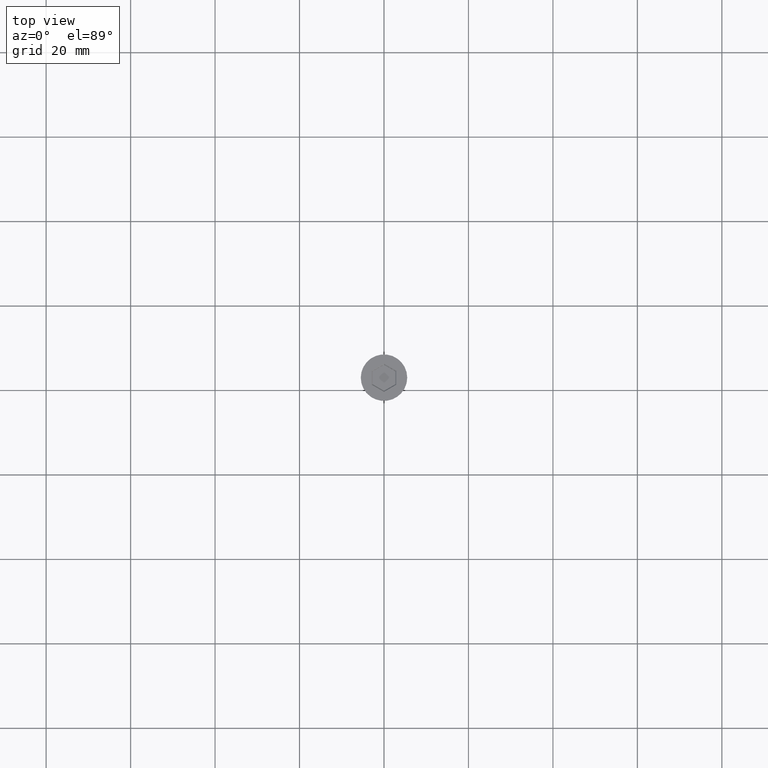
[diagram: clean part render]
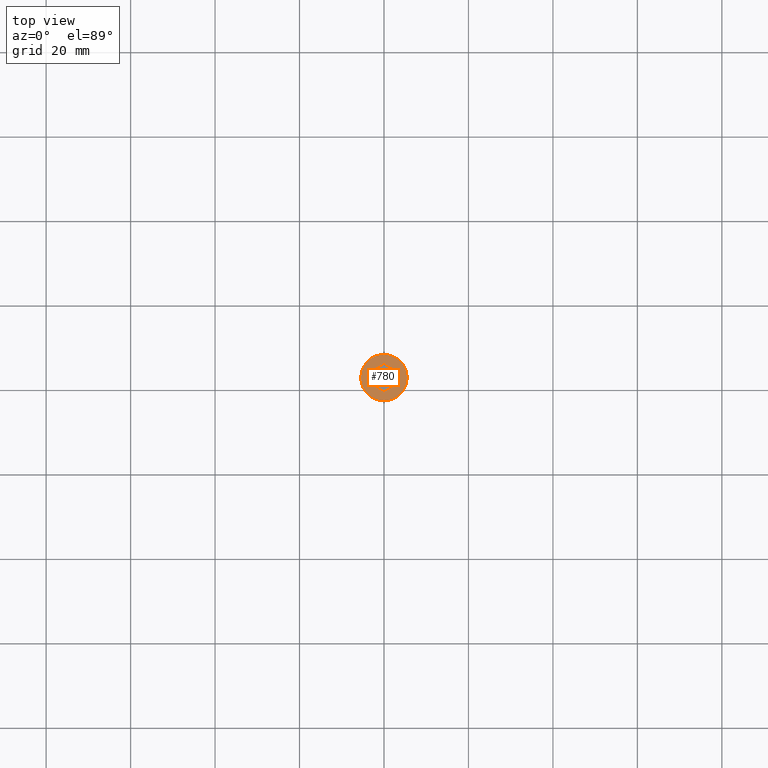
[diagram: same view with one face highlighted and labeled with its STEP entity id]
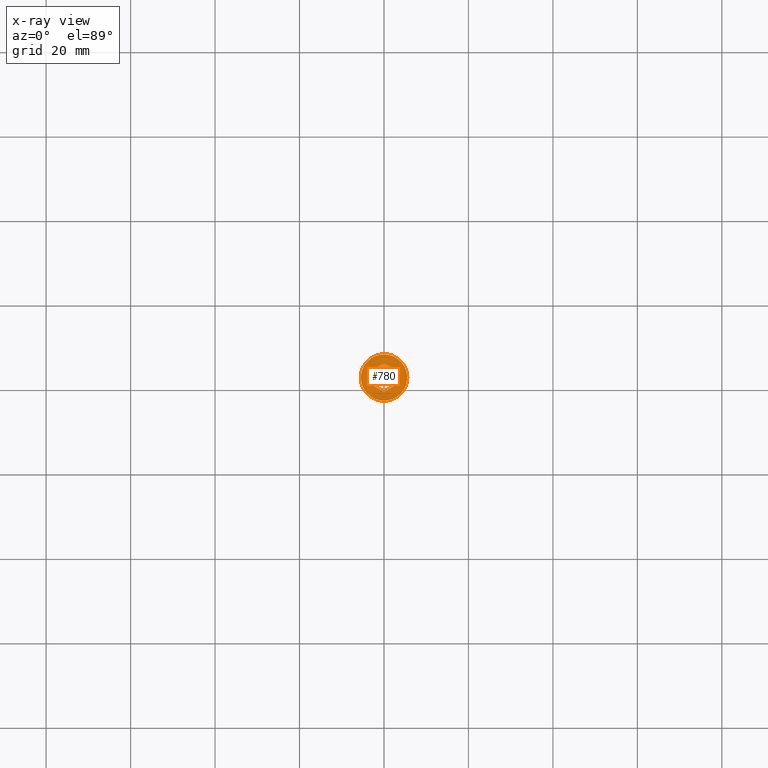
[diagram: x-ray of the same camera — body ghosted, the highlighted face saturated]
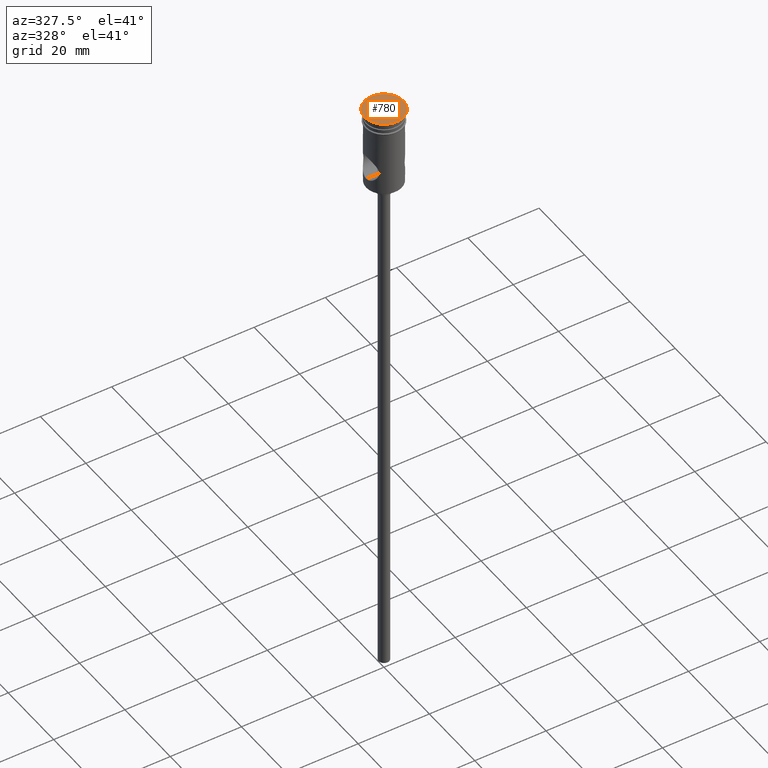
[diagram: same view with one face highlighted and labeled with its STEP entity id]
A machine part, top view. The second image highlights one B-rep face of the part: STEP entity #780.
The next image is the same camera in x-ray: the body ghosted, the highlighted face saturated — about 0% of this face is hidden behind the body in this view.
A second angle (auxiliary view) of the same face is appended — the face is thin or edge-on in the first view.
In plain terms, the highlighted planar face has unit normal (0, -0, 1).
Its self-contained STEP definition (entity closure, byte-faithful):
#23 = DIRECTION ( 'NONE',  ( 0.000000000000000000, 1.000000000000000000, 0.000000000000000000 ) ) ;
#33 = VECTOR ( 'NONE', #1429, 1000.000000000000000 ) ;
#62 = VECTOR ( 'NONE', #23, 1000.000000000000000 ) ;
#100 = CARTESIAN_POINT ( 'NONE',  ( 0.09999999999999654998, -3.290896534380861382, 0.000000000000000000 ) ) ;
#119 = EDGE_CURVE ( 'NONE', #942, #390, #403, .T. ) ;
#146 = DIRECTION ( 'NONE',  ( 1.000000000000000000, 0.000000000000000000, 0.000000000000000000 ) ) ;
#164 = EDGE_CURVE ( 'NONE', #390, #727, #717, .T. ) ;
#174 = ORIENTED_EDGE ( 'NONE', *, *, #368, .T. ) ;
#230 = ORIENTED_EDGE ( 'NONE', *, *, #1350, .T. ) ;
#234 = CARTESIAN_POINT ( 'NONE',  ( 0.000000000000000000, 0.000000000000000000, 0.000000000000000000 ) ) ;
#242 = CARTESIAN_POINT ( 'NONE',  ( -2.899999999999994138, 1.558845726811988852, 0.000000000000000000 ) ) ;
#260 = EDGE_CURVE ( 'NONE', #605, #483, #308, .T. ) ;
#287 = VECTOR ( 'NONE', #1079, 1000.000000000000000 ) ;
#308 = CIRCLE ( 'NONE', #495, 5.500000000000000000 ) ;
#351 = PLANE ( 'NONE',  #1321 ) ;
#360 = LINE ( 'NONE', #242, #62 ) ;
#368 = EDGE_CURVE ( 'NONE', #456, #712, #1416, .T. ) ;
#390 = VERTEX_POINT ( 'NONE', #1208 ) ;
#392 = EDGE_LOOP ( 'NONE', ( #230, #665 ) ) ;
#403 = LINE ( 'NONE', #100, #1196 ) ;
#456 = VERTEX_POINT ( 'NONE', #1376 ) ;
#483 = VERTEX_POINT ( 'NONE', #869 ) ;
#495 = AXIS2_PLACEMENT_3D ( 'NONE', #1379, #1146, #146 ) ;
#534 = DIRECTION ( 'NONE',  ( 1.000000000000000000, 0.000000000000000000, 0.000000000000000000 ) ) ;
#572 = DIRECTION ( 'NONE',  ( 0.000000000000000000, -0.000000000000000000, 1.000000000000000000 ) ) ;
#590 = ORIENTED_EDGE ( 'NONE', *, *, #719, .T. ) ;
#592 = LINE ( 'NONE', #1254, #883 ) ;
#605 = VERTEX_POINT ( 'NONE', #1401 ) ;
#624 = LINE ( 'NONE', #955, #287 ) ;
#665 = ORIENTED_EDGE ( 'NONE', *, *, #260, .T. ) ;
#712 = VERTEX_POINT ( 'NONE', #1261 ) ;
#717 = LINE ( 'NONE', #940, #1064 ) ;
#719 = EDGE_CURVE ( 'NONE', #1000, #942, #592, .T. ) ;
#727 = VERTEX_POINT ( 'NONE', #805 ) ;
#780 = ADVANCED_FACE ( 'NONE', ( #1365, #1271 ), #351, .T. ) ;
#795 = EDGE_CURVE ( 'NONE', #727, #456, #360, .T. ) ;
#796 = ORIENTED_EDGE ( 'NONE', *, *, #119, .T. ) ;
#805 = CARTESIAN_POINT ( 'NONE',  ( -2.899999999999994138, -1.674315780649910934, 0.000000000000000000 ) ) ;
#818 = AXIS2_PLACEMENT_3D ( 'NONE', #1337, #1008, #534 ) ;
#830 = ORIENTED_EDGE ( 'NONE', *, *, #164, .T. ) ;
#842 = DIRECTION ( 'NONE',  ( -0.8660254037844387076, -0.4999999999999998890, 0.000000000000000000 ) ) ;
#869 = CARTESIAN_POINT ( 'NONE',  ( 5.500000000000000000, 0.000000000000000000, 0.000000000000000000 ) ) ;
#883 = VECTOR ( 'NONE', #1034, 1000.000000000000000 ) ;
#910 = CIRCLE ( 'NONE', #818, 5.500000000000000000 ) ;
#919 = DIRECTION ( 'NONE',  ( -0.8660254037844385966, 0.5000000000000001110, 0.000000000000000000 ) ) ;
#940 = CARTESIAN_POINT ( 'NONE',  ( -2.799999999999997158, -1.732050807568871864, 0.000000000000000000 ) ) ;
#942 = VERTEX_POINT ( 'NONE', #1074 ) ;
#954 = EDGE_CURVE ( 'NONE', #712, #1000, #624, .T. ) ;
#955 = CARTESIAN_POINT ( 'NONE',  ( 2.799999999999996270, 1.732050807568872086, 0.000000000000000000 ) ) ;
#970 = ORIENTED_EDGE ( 'NONE', *, *, #954, .T. ) ;
#981 = CARTESIAN_POINT ( 'NONE',  ( -0.09999999999999764633, 3.290896534380861382, 0.000000000000000000 ) ) ;
#1000 = VERTEX_POINT ( 'NONE', #1207 ) ;
#1008 = DIRECTION ( 'NONE',  ( -0.000000000000000000, -0.000000000000000000, 1.000000000000000000 ) ) ;
#1034 = DIRECTION ( 'NONE',  ( -1.391032035867740017E-16, -1.000000000000000000, 0.000000000000000000 ) ) ;
#1051 = DIRECTION ( 'NONE',  ( 1.000000000000000000, 0.000000000000000000, 0.000000000000000000 ) ) ;
#1064 = VECTOR ( 'NONE', #919, 1000.000000000000114 ) ;
#1074 = CARTESIAN_POINT ( 'NONE',  ( 2.899999999999992362, -1.674315780649911822, 0.000000000000000000 ) ) ;
#1079 = DIRECTION ( 'NONE',  ( 0.8660254037844387076, -0.4999999999999998335, 0.000000000000000000 ) ) ;
#1146 = DIRECTION ( 'NONE',  ( -0.000000000000000000, -0.000000000000000000, 1.000000000000000000 ) ) ;
#1196 = VECTOR ( 'NONE', #842, 1000.000000000000000 ) ;
#1207 = CARTESIAN_POINT ( 'NONE',  ( 2.899999999999992806, 1.674315780649911378, 0.000000000000000000 ) ) ;
#1208 = CARTESIAN_POINT ( 'NONE',  ( -4.552601062339046804E-16, -3.348631561299821868, 0.000000000000000000 ) ) ;
#1254 = CARTESIAN_POINT ( 'NONE',  ( 2.899999999999992362, -1.558845726811989296, 0.000000000000000000 ) ) ;
#1261 = CARTESIAN_POINT ( 'NONE',  ( -9.683804684061200344E-16, 3.348631561299821868, 0.000000000000000000 ) ) ;
#1271 = FACE_OUTER_BOUND ( 'NONE', #392, .T. ) ;
#1321 = AXIS2_PLACEMENT_3D ( 'NONE', #234, #572, #1051 ) ;
#1337 = CARTESIAN_POINT ( 'NONE',  ( 0.000000000000000000, 0.000000000000000000, 0.000000000000000000 ) ) ;
#1350 = EDGE_CURVE ( 'NONE', #483, #605, #910, .T. ) ;
#1365 = FACE_BOUND ( 'NONE', #1419, .T. ) ;
#1374 = ORIENTED_EDGE ( 'NONE', *, *, #795, .T. ) ;
#1376 = CARTESIAN_POINT ( 'NONE',  ( -2.899999999999994138, 1.674315780649911600, 0.000000000000000000 ) ) ;
#1379 = CARTESIAN_POINT ( 'NONE',  ( 0.000000000000000000, 0.000000000000000000, 0.000000000000000000 ) ) ;
#1401 = CARTESIAN_POINT ( 'NONE',  ( -5.500000000000000000, 6.735557395310442023E-16, 0.000000000000000000 ) ) ;
#1416 = LINE ( 'NONE', #981, #33 ) ;
#1419 = EDGE_LOOP ( 'NONE', ( #830, #1374, #174, #970, #590, #796 ) ) ;
#1429 = DIRECTION ( 'NONE',  ( 0.8660254037844387076, 0.4999999999999998890, 0.000000000000000000 ) ) ;